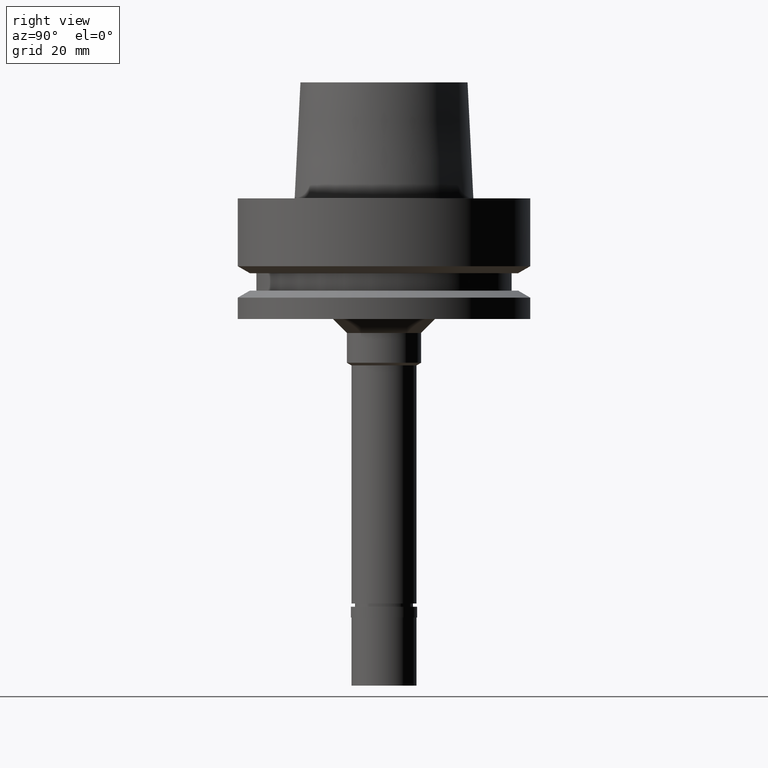
[diagram: clean part render]
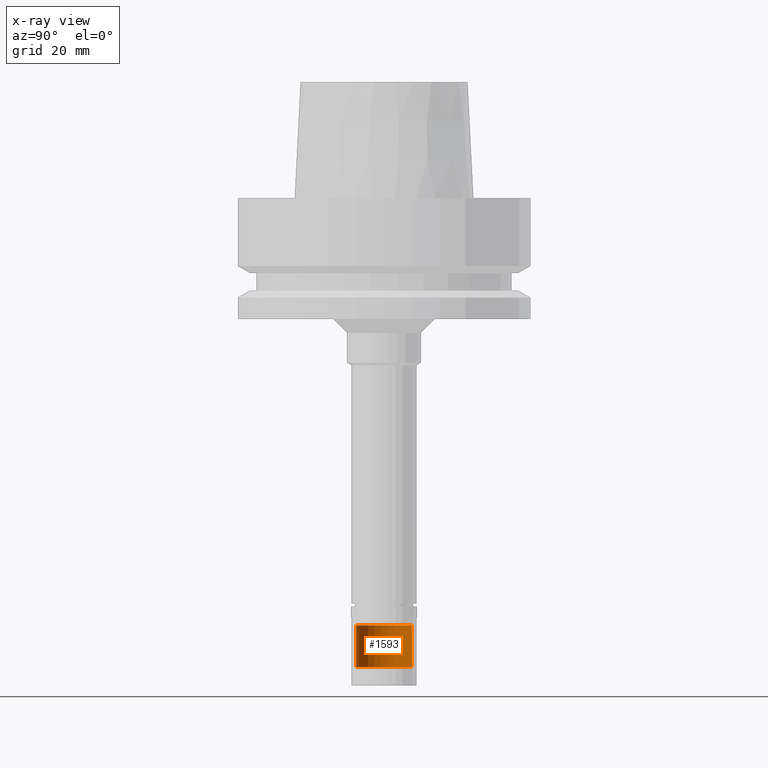
[diagram: x-ray — body ghosted, one internal face saturated and labeled with its STEP entity id]
A machine part, right view, then the same camera in x-ray: the body is ghosted and one INTERNAL B-rep face — a face not visible from any outside direction — is saturated and labeled: STEP entity #1593.
In plain terms, the highlighted cylindrical surface (edge-blend (fillet) strip) has radius 6 mm, axis along (0, 0, 1).
Its self-contained STEP definition (entity closure, byte-faithful):
#5 = EDGE_CURVE ( 'NONE', #2682, #1832, #789, .T. ) ;
#35 = EDGE_LOOP ( 'NONE', ( #2708, #439, #1762, #2220 ) ) ;
#52 = CARTESIAN_POINT ( 'NONE',  ( 0.0000000000000000000, 6.000000000000000000, -101.0000000000000000 ) ) ;
#129 = CARTESIAN_POINT ( 'NONE',  ( 0.0000000000000000000, -6.000000000000000000, -92.00000000000000000 ) ) ;
#154 = CARTESIAN_POINT ( 'NONE',  ( 0.0000000000000000000, -6.000000000000000000, -92.00000000000000000 ) ) ;
#302 = CARTESIAN_POINT ( 'NONE',  ( 0.0000000000000000000, 0.0000000000000000000, -107.3000000000000114 ) ) ;
#412 = CARTESIAN_POINT ( 'NONE',  ( 0.0000000000000000000, 0.0000000000000000000, -101.0000000000000000 ) ) ;
#439 = ORIENTED_EDGE ( 'NONE', *, *, #2172, .F. ) ;
#567 = AXIS2_PLACEMENT_3D ( 'NONE', #1984, #1335, #2198 ) ;
#707 = CIRCLE ( 'NONE', #1968, 6.000000000000000000 ) ;
#723 = CARTESIAN_POINT ( 'NONE',  ( 0.0000000000000000000, 6.000000000000000000, -92.00000000000000000 ) ) ;
#748 = VECTOR ( 'NONE', #2685, 1000.000000000000000 ) ;
#789 = CIRCLE ( 'NONE', #567, 6.000000000000000000 ) ;
#1024 = CARTESIAN_POINT ( 'NONE',  ( 0.0000000000000000000, -6.000000000000000000, -101.0000000000000000 ) ) ;
#1029 = VECTOR ( 'NONE', #2712, 1000.000000000000000 ) ;
#1112 = VERTEX_POINT ( 'NONE', #52 ) ;
#1227 = EDGE_CURVE ( 'NONE', #1832, #1112, #2035, .T. ) ;
#1277 = DIRECTION ( 'NONE',  ( 0.0000000000000000000, 0.0000000000000000000, 1.000000000000000000 ) ) ;
#1335 = DIRECTION ( 'NONE',  ( 0.0000000000000000000, 0.0000000000000000000, -1.000000000000000000 ) ) ;
#1402 = LINE ( 'NONE', #129, #1029 ) ;
#1564 = CYLINDRICAL_SURFACE ( 'NONE', #1879, 6.000000000000000000 ) ;
#1593 = ADVANCED_FACE ( 'NONE', ( #2631 ), #1564, .T. ) ;
#1762 = ORIENTED_EDGE ( 'NONE', *, *, #5, .T. ) ;
#1832 = VERTEX_POINT ( 'NONE', #2483 ) ;
#1879 = AXIS2_PLACEMENT_3D ( 'NONE', #302, #2256, #1994 ) ;
#1968 = AXIS2_PLACEMENT_3D ( 'NONE', #412, #1277, #2140 ) ;
#1984 = CARTESIAN_POINT ( 'NONE',  ( 0.0000000000000000000, 0.0000000000000000000, -92.00000000000000000 ) ) ;
#1994 = DIRECTION ( 'NONE',  ( 0.0000000000000000000, 1.000000000000000000, 0.0000000000000000000 ) ) ;
#2034 = EDGE_CURVE ( 'NONE', #1112, #2522, #707, .T. ) ;
#2035 = LINE ( 'NONE', #723, #748 ) ;
#2140 = DIRECTION ( 'NONE',  ( 0.0000000000000000000, 1.000000000000000000, 0.0000000000000000000 ) ) ;
#2172 = EDGE_CURVE ( 'NONE', #2682, #2522, #1402, .T. ) ;
#2198 = DIRECTION ( 'NONE',  ( 0.0000000000000000000, -1.000000000000000000, 0.0000000000000000000 ) ) ;
#2220 = ORIENTED_EDGE ( 'NONE', *, *, #1227, .T. ) ;
#2256 = DIRECTION ( 'NONE',  ( 0.0000000000000000000, 0.0000000000000000000, 1.000000000000000000 ) ) ;
#2483 = CARTESIAN_POINT ( 'NONE',  ( 0.0000000000000000000, 6.000000000000000000, -92.00000000000000000 ) ) ;
#2522 = VERTEX_POINT ( 'NONE', #1024 ) ;
#2631 = FACE_OUTER_BOUND ( 'NONE', #35, .T. ) ;
#2682 = VERTEX_POINT ( 'NONE', #154 ) ;
#2685 = DIRECTION ( 'NONE',  ( 0.0000000000000000000, 0.0000000000000000000, -1.000000000000000000 ) ) ;
#2708 = ORIENTED_EDGE ( 'NONE', *, *, #2034, .T. ) ;
#2712 = DIRECTION ( 'NONE',  ( 0.0000000000000000000, 0.0000000000000000000, -1.000000000000000000 ) ) ;